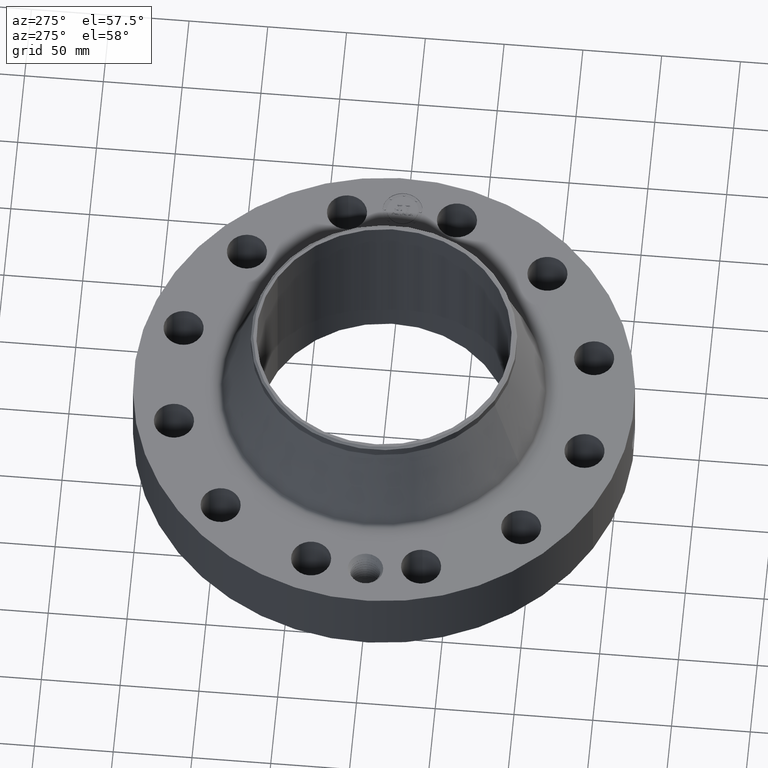
[diagram: clean part render]
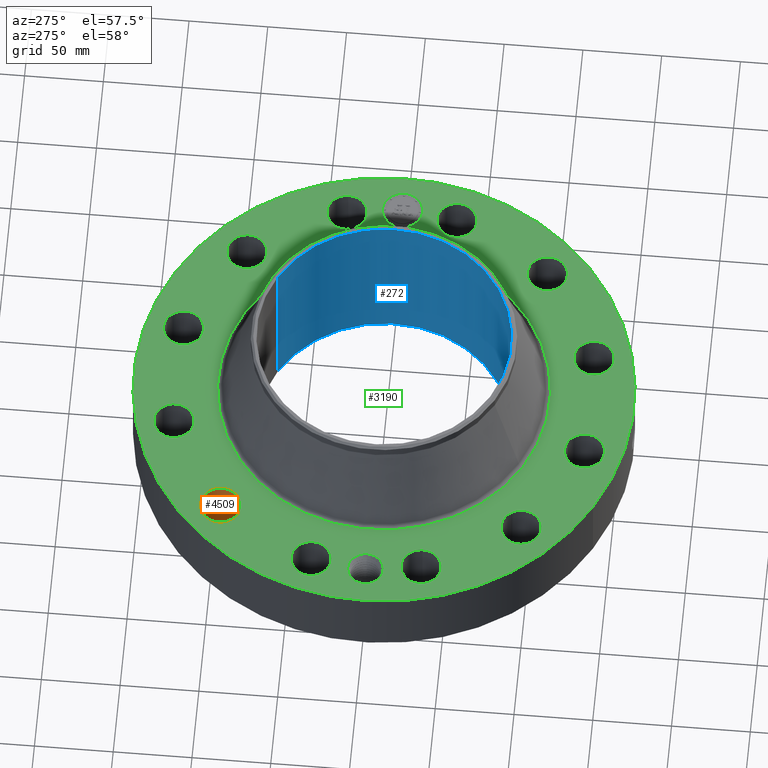
[diagram: same view with three faces highlighted in distinct colors, each labeled with its STEP entity id]
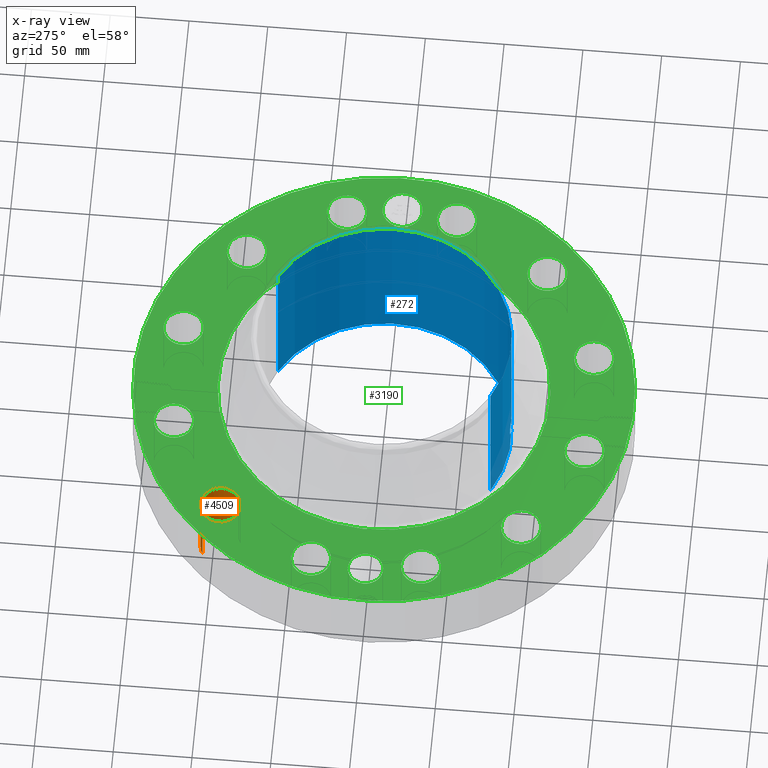
[diagram: x-ray of the same camera — body ghosted, the three highlighted faces saturated]
A machine part, auxiliary view with three faces highlighted in distinct colors.
The next image is the same camera in x-ray (body ghosted, the three faces saturated) — at least one of them is partly hidden behind the body in this view.
Their STEP definitions:

[orange] entity #4509 — the highlighted cylindrical surface (edge-blend (fillet) strip) has radius 12.7 mm, axis along (0, 0, -1).
#3084=AXIS2_PLACEMENT_3D('Circle Axis2P3D',#3082,#3083,$) ;
#4470=AXIS2_PLACEMENT_3D('Cylinder Axis2P3D',#4467,#4468,#4469) ;
#4500=AXIS2_PLACEMENT_3D('Circle Axis2P3D',#4498,#4499,$) ;
#3082=CARTESIAN_POINT('Axis2P3D Location',(-3.75473700812,3.75473700812,1.93200000001)) ;
#3086=CARTESIAN_POINT('Vertex',(-4.01488501972,4.18172999642,1.93200000001)) ;
#3088=CARTESIAN_POINT('Vertex',(-3.49458899651,3.32774401981,1.93200000001)) ;
#4467=CARTESIAN_POINT('Axis2P3D Location',(-3.75473700812,3.75473700812,1.92806299213)) ;
#4472=CARTESIAN_POINT('Line Origine',(-3.49458899651,3.32774401981,0.966000000004)) ;
#4476=CARTESIAN_POINT('Vertex',(-3.49458899651,3.32774401981,0.)) ;
#4483=CARTESIAN_POINT('Vertex',(-4.01488501972,4.18172999642,0.)) ;
#4486=CARTESIAN_POINT('Line Origine',(-4.01488501972,4.18172999642,0.966000000004)) ;
#4498=CARTESIAN_POINT('Axis2P3D Location',(-3.75473700812,3.75473700812,0.)) ;
#3083=DIRECTION('Axis2P3D Direction',(0.,0.,-0.0393700787402)) ;
#4468=DIRECTION('Axis2P3D Direction',(0.,0.,-0.0393700787402)) ;
#4469=DIRECTION('Axis2P3D XDirection',(-0.0204840954021,0.0336214951417,0.)) ;
#4473=DIRECTION('Vector Direction',(0.,0.,-0.0393700787402)) ;
#4487=DIRECTION('Vector Direction',(0.,0.,-0.0393700787402)) ;
#4499=DIRECTION('Axis2P3D Direction',(0.,0.,-0.0393700787402)) ;
#4474=VECTOR('Line Direction',#4473,0.0393700787402) ;
#4488=VECTOR('Line Direction',#4487,0.0393700787402) ;
#4504=ORIENTED_EDGE('',*,*,#4490,.F.) ;
#4505=ORIENTED_EDGE('',*,*,#4502,.T.) ;
#4506=ORIENTED_EDGE('',*,*,#4478,.T.) ;
#4507=ORIENTED_EDGE('',*,*,#3090,.F.) ;
#4509=ADVANCED_FACE('PartBody',(#4508),#4471,.F.) ;
#3085=CIRCLE('generated circle',#3084,0.500000000002) ;
#4501=CIRCLE('generated circle',#4500,0.500000000002) ;
#4471=CYLINDRICAL_SURFACE('generated cylinder',#4470,0.500000000002) ;
#3090=EDGE_CURVE('',#3087,#3089,#3085,.T.) ;
#4478=EDGE_CURVE('',#4477,#3089,#4475,.F.) ;
#4490=EDGE_CURVE('',#4484,#3087,#4489,.F.) ;
#4502=EDGE_CURVE('',#4484,#4477,#4501,.T.) ;
#4503=EDGE_LOOP('',(#4504,#4505,#4506,#4507)) ;
#4508=FACE_OUTER_BOUND('',#4503,.T.) ;
#4475=LINE('Line',#4472,#4474) ;
#4489=LINE('Line',#4486,#4488) ;
#3087=VERTEX_POINT('',#3086) ;
#3089=VERTEX_POINT('',#3088) ;
#4477=VERTEX_POINT('',#4476) ;
#4484=VERTEX_POINT('',#4483) ;

[blue] entity #272 — the highlighted cylindrical surface (partial cylindrical patch) has radius 80.7339 mm, axis along (0, 0, -1).
#232=AXIS2_PLACEMENT_3D('Cylinder Axis2P3D',#229,#230,#231) ;
#236=AXIS2_PLACEMENT_3D('Circle Axis2P3D',#234,#235,$) ;
#252=AXIS2_PLACEMENT_3D('Circle Axis2P3D',#250,#251,$) ;
#81=CARTESIAN_POINT('Control Point',(0.219395640473,-3.1709190786,0.630143615351)) ;
#82=CARTESIAN_POINT('Control Point',(0.206922189069,-3.17178211572,0.607311115709)) ;
#83=CARTESIAN_POINT('Control Point',(0.191480801137,-3.17278887507,0.586105439723)) ;
#84=CARTESIAN_POINT('Control Point',(0.173351825664,-3.17386141958,0.567037196628)) ;
#85=CARTESIAN_POINT('Control Point',(0.112183082773,-3.17696161254,0.517583668595)) ;
#86=CARTESIAN_POINT('Control Point',(0.0350624242797,-3.17897575883,0.494045462645)) ;
#87=CARTESIAN_POINT('Control Point',(-0.0194750712967,-3.1791278185,0.492387778052)) ;
#88=CARTESIAN_POINT('Control Point',(-0.124035068976,-3.1769156347,0.517486209908)) ;
#89=CARTESIAN_POINT('Control Point',(-0.203064883059,-3.172328085,0.590298515845)) ;
#90=CARTESIAN_POINT('Control Point',(-0.232068690359,-3.17006491995,0.63645682153)) ;
#91=CARTESIAN_POINT('Control Point',(-0.255816466001,-3.16819544305,0.714634868099)) ;
#92=CARTESIAN_POINT('Control Point',(-0.248325199448,-3.16878463358,0.794078858202)) ;
#93=CARTESIAN_POINT('Control Point',(-0.242090420794,-3.16928244653,0.820709359006)) ;
#94=CARTESIAN_POINT('Control Point',(-0.232341542979,-3.17002335263,0.846159069073)) ;
#95=CARTESIAN_POINT('Control Point',(-0.219395640473,-3.1709190786,0.869856384655)) ;
#96=CARTESIAN_POINT('Vertex',(0.219395640473,-3.1709190786,0.630143615351)) ;
#98=CARTESIAN_POINT('Vertex',(-0.219395640473,-3.1709190786,0.869856384655)) ;
#206=CARTESIAN_POINT('Control Point',(-0.219395640473,-3.1709190786,0.869856384655)) ;
#207=CARTESIAN_POINT('Control Point',(-0.206922189074,-3.17178211572,0.892688884289)) ;
#208=CARTESIAN_POINT('Control Point',(-0.191480801149,-3.17278887507,0.913894560268)) ;
#209=CARTESIAN_POINT('Control Point',(-0.173351825648,-3.17386141958,0.932962803391)) ;
#210=CARTESIAN_POINT('Control Point',(-0.112183082761,-3.17696161255,0.982416331415)) ;
#211=CARTESIAN_POINT('Control Point',(-0.0350624242751,-3.17897575883,1.00595453736)) ;
#212=CARTESIAN_POINT('Control Point',(0.0194750712941,-3.1791278185,1.00761222195)) ;
#213=CARTESIAN_POINT('Control Point',(0.124035068991,-3.1769156347,0.982513790095)) ;
#214=CARTESIAN_POINT('Control Point',(0.203064883083,-3.172328085,0.909701484139)) ;
#215=CARTESIAN_POINT('Control Point',(0.23206869035,-3.17006491995,0.863543178504)) ;
#216=CARTESIAN_POINT('Control Point',(0.255816466002,-3.16819544305,0.785365131922)) ;
#217=CARTESIAN_POINT('Control Point',(0.248325199448,-3.16878463358,0.705921141804)) ;
#218=CARTESIAN_POINT('Control Point',(0.242090420794,-3.16928244653,0.679290641)) ;
#219=CARTESIAN_POINT('Control Point',(0.232341542978,-3.17002335263,0.653840930933)) ;
#220=CARTESIAN_POINT('Control Point',(0.219395640473,-3.1709190786,0.630143615351)) ;
#229=CARTESIAN_POINT('Axis2P3D Location',(0.,0.,2.18600000001)) ;
#234=CARTESIAN_POINT('Axis2P3D Location',(0.,0.,4.37200000002)) ;
#238=CARTESIAN_POINT('Vertex',(1.52385407446,2.78939617298,4.37200000002)) ;
#240=CARTESIAN_POINT('Vertex',(-1.52385407446,-2.78939617298,4.37200000002)) ;
#243=CARTESIAN_POINT('Line Origine',(1.52385407446,2.78939617298,2.18600000001)) ;
#247=CARTESIAN_POINT('Vertex',(1.52385407446,2.78939617298,-6.15430716013E-015)) ;
#250=CARTESIAN_POINT('Axis2P3D Location',(0.,0.,-6.71378962923E-015)) ;
#254=CARTESIAN_POINT('Vertex',(-1.52385407446,-2.78939617298,-6.15430716013E-015)) ;
#257=CARTESIAN_POINT('Line Origine',(-1.52385407446,-2.78939617298,2.18600000001)) ;
#230=DIRECTION('Axis2P3D Direction',(0.,0.,-0.0393700787402)) ;
#231=DIRECTION('Axis2P3D XDirection',(-0.0188750212049,-0.0345504945626,0.)) ;
#235=DIRECTION('Axis2P3D Direction',(0.,0.,-0.0393700787402)) ;
#244=DIRECTION('Vector Direction',(0.,0.,-0.0393700787402)) ;
#251=DIRECTION('Axis2P3D Direction',(0.,0.,-0.0393700787402)) ;
#258=DIRECTION('Vector Direction',(0.,0.,-0.0393700787402)) ;
#245=VECTOR('Line Direction',#244,0.0393700787402) ;
#259=VECTOR('Line Direction',#258,0.0393700787402) ;
#263=ORIENTED_EDGE('',*,*,#242,.F.) ;
#264=ORIENTED_EDGE('',*,*,#249,.T.) ;
#265=ORIENTED_EDGE('',*,*,#256,.T.) ;
#266=ORIENTED_EDGE('',*,*,#261,.F.) ;
#269=ORIENTED_EDGE('',*,*,#100,.F.) ;
#270=ORIENTED_EDGE('',*,*,#221,.F.) ;
#271=FACE_BOUND('',#268,.T.) ;
#272=ADVANCED_FACE('PartBody',(#267,#271),#233,.F.) ;
#80=B_SPLINE_CURVE_WITH_KNOTS('',5,(#81,#82,#83,#84,#85,#86,#87,#88,#89,#90,#91,#92,#93,#94,#95),.UNSPECIFIED.,.F.,.U.,(6,3,3,3,6),(0.,4.67544549414,14.0204359545,23.3703389351,28.2228740975),.UNSPECIFIED.) ;
#205=B_SPLINE_CURVE_WITH_KNOTS('',5,(#206,#207,#208,#209,#210,#211,#212,#213,#214,#215,#216,#217,#218,#219,#220),.UNSPECIFIED.,.F.,.U.,(6,3,3,3,6),(0.,4.6754454924,14.0204359531,23.3703389364,28.2228740987),.UNSPECIFIED.) ;
#237=CIRCLE('generated circle',#236,3.17850000001) ;
#253=CIRCLE('generated circle',#252,3.17850000001) ;
#233=CYLINDRICAL_SURFACE('generated cylinder',#232,3.17850000001) ;
#100=EDGE_CURVE('',#97,#99,#80,.T.) ;
#221=EDGE_CURVE('',#99,#97,#205,.T.) ;
#242=EDGE_CURVE('',#239,#241,#237,.T.) ;
#249=EDGE_CURVE('',#239,#248,#246,.T.) ;
#256=EDGE_CURVE('',#248,#255,#253,.T.) ;
#261=EDGE_CURVE('',#241,#255,#260,.T.) ;
#262=EDGE_LOOP('',(#263,#264,#265,#266)) ;
#268=EDGE_LOOP('',(#269,#270)) ;
#267=FACE_OUTER_BOUND('',#262,.T.) ;
#246=LINE('Line',#243,#245) ;
#260=LINE('Line',#257,#259) ;
#97=VERTEX_POINT('',#96) ;
#99=VERTEX_POINT('',#98) ;
#239=VERTEX_POINT('',#238) ;
#241=VERTEX_POINT('',#240) ;
#248=VERTEX_POINT('',#247) ;
#255=VERTEX_POINT('',#254) ;

[green] entity #3190 — the highlighted planar face has unit normal (0, 0, -1).
#2190=AXIS2_PLACEMENT_3D('Circle Axis2P3D',#2188,#2189,$) ;
#2216=AXIS2_PLACEMENT_3D('Circle Axis2P3D',#2214,#2215,$) ;
#2914=AXIS2_PLACEMENT_3D('Plane Axis2P3D',#2911,#2912,#2913) ;
#2918=AXIS2_PLACEMENT_3D('Circle Axis2P3D',#2916,#2917,$) ;
#2927=AXIS2_PLACEMENT_3D('Circle Axis2P3D',#2925,#2926,$) ;
#2936=AXIS2_PLACEMENT_3D('Circle Axis2P3D',#2934,#2935,$) ;
#2945=AXIS2_PLACEMENT_3D('Circle Axis2P3D',#2943,#2944,$) ;
#2954=AXIS2_PLACEMENT_3D('Circle Axis2P3D',#2952,#2953,$) ;
#2963=AXIS2_PLACEMENT_3D('Circle Axis2P3D',#2961,#2962,$) ;
#2976=AXIS2_PLACEMENT_3D('Circle Axis2P3D',#2974,#2975,$) ;
#2985=AXIS2_PLACEMENT_3D('Circle Axis2P3D',#2983,#2984,$) ;
#2994=AXIS2_PLACEMENT_3D('Circle Axis2P3D',#2992,#2993,$) ;
#3003=AXIS2_PLACEMENT_3D('Circle Axis2P3D',#3001,#3002,$) ;
#3012=AXIS2_PLACEMENT_3D('Circle Axis2P3D',#3010,#3011,$) ;
#3021=AXIS2_PLACEMENT_3D('Circle Axis2P3D',#3019,#3020,$) ;
#3030=AXIS2_PLACEMENT_3D('Circle Axis2P3D',#3028,#3029,$) ;
#3039=AXIS2_PLACEMENT_3D('Circle Axis2P3D',#3037,#3038,$) ;
#3048=AXIS2_PLACEMENT_3D('Circle Axis2P3D',#3046,#3047,$) ;
#3057=AXIS2_PLACEMENT_3D('Circle Axis2P3D',#3055,#3056,$) ;
#3066=AXIS2_PLACEMENT_3D('Circle Axis2P3D',#3064,#3065,$) ;
#3075=AXIS2_PLACEMENT_3D('Circle Axis2P3D',#3073,#3074,$) ;
#3084=AXIS2_PLACEMENT_3D('Circle Axis2P3D',#3082,#3083,$) ;
#3093=AXIS2_PLACEMENT_3D('Circle Axis2P3D',#3091,#3092,$) ;
#3102=AXIS2_PLACEMENT_3D('Circle Axis2P3D',#3100,#3101,$) ;
#3111=AXIS2_PLACEMENT_3D('Circle Axis2P3D',#3109,#3110,$) ;
#3120=AXIS2_PLACEMENT_3D('Circle Axis2P3D',#3118,#3119,$) ;
#3129=AXIS2_PLACEMENT_3D('Circle Axis2P3D',#3127,#3128,$) ;
#3138=AXIS2_PLACEMENT_3D('Circle Axis2P3D',#3136,#3137,$) ;
#3147=AXIS2_PLACEMENT_3D('Circle Axis2P3D',#3145,#3146,$) ;
#3156=AXIS2_PLACEMENT_3D('Circle Axis2P3D',#3154,#3155,$) ;
#3165=AXIS2_PLACEMENT_3D('Circle Axis2P3D',#3163,#3164,$) ;
#3174=AXIS2_PLACEMENT_3D('Circle Axis2P3D',#3172,#3173,$) ;
#3183=AXIS2_PLACEMENT_3D('Circle Axis2P3D',#3181,#3182,$) ;
#2188=CARTESIAN_POINT('Axis2P3D Location',(0.,0.,1.93200000001)) ;
#2192=CARTESIAN_POINT('Vertex',(-1.98747835697,-3.6380547296,1.93200000001)) ;
#2194=CARTESIAN_POINT('Vertex',(1.98747835697,3.6380547296,1.93200000001)) ;
#2214=CARTESIAN_POINT('Axis2P3D Location',(0.,0.,1.93200000001)) ;
#2911=CARTESIAN_POINT('Axis2P3D Location',(0.,6.25000000002,1.93200000001)) ;
#2916=CARTESIAN_POINT('Axis2P3D Location',(0.,0.,1.93200000001)) ;
#2920=CARTESIAN_POINT('Vertex',(2.99640961629,5.48489101184,1.93200000001)) ;
#2922=CARTESIAN_POINT('Vertex',(-2.99640961629,-5.48489101184,1.93200000001)) ;
#2925=CARTESIAN_POINT('Axis2P3D Location',(0.,0.,1.93200000001)) ;
#2934=CARTESIAN_POINT('Axis2P3D Location',(-5.31000000002,-1.1189649382E-015,1.93200000001)) ;
#2938=CARTESIAN_POINT('Vertex',(-5.69859355843,0.212289628495,1.93200000001)) ;
#2940=CARTESIAN_POINT('Vertex',(-4.92140644161,-0.212289628495,1.93200000001)) ;
#2943=CARTESIAN_POINT('Axis2P3D Location',(-5.31000000002,-1.1189649382E-015,1.93200000001)) ;
#2952=CARTESIAN_POINT('Axis2P3D Location',(5.12906613762,-1.3743291295,1.93200000001)) ;
#2956=CARTESIAN_POINT('Vertex',(4.69027485667,-1.1346163602,1.93200000001)) ;
#2958=CARTESIAN_POINT('Vertex',(5.56785741856,-1.6140418988,1.93200000001)) ;
#2961=CARTESIAN_POINT('Axis2P3D Location',(5.12906613762,-1.3743291295,1.93200000001)) ;
#2974=CARTESIAN_POINT('Axis2P3D Location',(3.75473700812,-3.75473700812,1.93200000001)) ;
#2978=CARTESIAN_POINT('Vertex',(4.01488501972,-4.18172999642,1.93200000001)) ;
#2980=CARTESIAN_POINT('Vertex',(3.49458899651,-3.32774401981,1.93200000001)) ;
#2983=CARTESIAN_POINT('Axis2P3D Location',(3.75473700812,-3.75473700812,1.93200000001)) ;
#2992=CARTESIAN_POINT('Axis2P3D Location',(1.3743291295,-5.12906613762,1.93200000001)) ;
#2996=CARTESIAN_POINT('Vertex',(1.38612742215,-5.62892691853,1.93200000001)) ;
#2998=CARTESIAN_POINT('Vertex',(1.36253083685,-4.6292053567,1.93200000001)) ;
#3001=CARTESIAN_POINT('Axis2P3D Location',(1.3743291295,-5.12906613762,1.93200000001)) ;
#3010=CARTESIAN_POINT('Axis2P3D Location',(-1.3743291295,-5.12906613762,1.93200000001)) ;
#3014=CARTESIAN_POINT('Vertex',(-1.6140418988,-5.56785741856,1.93200000001)) ;
#3016=CARTESIAN_POINT('Vertex',(-1.1346163602,-4.69027485667,1.93200000001)) ;
#3019=CARTESIAN_POINT('Axis2P3D Location',(-1.3743291295,-5.12906613762,1.93200000001)) ;
#3028=CARTESIAN_POINT('Axis2P3D Location',(-3.75473700812,-3.75473700812,1.93200000001)) ;
#3032=CARTESIAN_POINT('Vertex',(-4.18172999642,-4.01488501972,1.93200000001)) ;
#3034=CARTESIAN_POINT('Vertex',(-3.32774401981,-3.49458899651,1.93200000001)) ;
#3037=CARTESIAN_POINT('Axis2P3D Location',(-3.75473700812,-3.75473700812,1.93200000001)) ;
#3046=CARTESIAN_POINT('Axis2P3D Location',(-5.12906613762,-1.3743291295,1.93200000001)) ;
#3050=CARTESIAN_POINT('Vertex',(-5.62892691853,-1.38612742215,1.93200000001)) ;
#3052=CARTESIAN_POINT('Vertex',(-4.6292053567,-1.36253083685,1.93200000001)) ;
#3055=CARTESIAN_POINT('Axis2P3D Location',(-5.12906613762,-1.3743291295,1.93200000001)) ;
#3064=CARTESIAN_POINT('Axis2P3D Location',(-5.12906613762,1.3743291295,1.93200000001)) ;
#3068=CARTESIAN_POINT('Vertex',(-5.56785741856,1.6140418988,1.93200000001)) ;
#3070=CARTESIAN_POINT('Vertex',(-4.69027485667,1.1346163602,1.93200000001)) ;
#3073=CARTESIAN_POINT('Axis2P3D Location',(-5.12906613762,1.3743291295,1.93200000001)) ;
#3082=CARTESIAN_POINT('Axis2P3D Location',(-3.75473700812,3.75473700812,1.93200000001)) ;
#3086=CARTESIAN_POINT('Vertex',(-4.01488501972,4.18172999642,1.93200000001)) ;
#3088=CARTESIAN_POINT('Vertex',(-3.49458899651,3.32774401981,1.93200000001)) ;
#3091=CARTESIAN_POINT('Axis2P3D Location',(-3.75473700812,3.75473700812,1.93200000001)) ;
#3100=CARTESIAN_POINT('Axis2P3D Location',(-1.3743291295,5.12906613762,1.93200000001)) ;
#3104=CARTESIAN_POINT('Vertex',(-1.38612742215,5.62892691853,1.93200000001)) ;
#3106=CARTESIAN_POINT('Vertex',(-1.36253083685,4.6292053567,1.93200000001)) ;
#3109=CARTESIAN_POINT('Axis2P3D Location',(-1.3743291295,5.12906613762,1.93200000001)) ;
#3118=CARTESIAN_POINT('Axis2P3D Location',(1.3743291295,5.12906613762,1.93200000001)) ;
#3122=CARTESIAN_POINT('Vertex',(1.6140418988,5.56785741856,1.93200000001)) ;
#3124=CARTESIAN_POINT('Vertex',(1.1346163602,4.69027485667,1.93200000001)) ;
#3127=CARTESIAN_POINT('Axis2P3D Location',(1.3743291295,5.12906613762,1.93200000001)) ;
#3136=CARTESIAN_POINT('Axis2P3D Location',(3.75473700812,3.75473700812,1.93200000001)) ;
#3140=CARTESIAN_POINT('Vertex',(4.18172999642,4.01488501972,1.93200000001)) ;
#3142=CARTESIAN_POINT('Vertex',(3.32774401981,3.49458899651,1.93200000001)) ;
#3145=CARTESIAN_POINT('Axis2P3D Location',(3.75473700812,3.75473700812,1.93200000001)) ;
#3154=CARTESIAN_POINT('Axis2P3D Location',(5.12906613762,1.3743291295,1.93200000001)) ;
#3158=CARTESIAN_POINT('Vertex',(5.62892691853,1.38612742215,1.93200000001)) ;
#3160=CARTESIAN_POINT('Vertex',(4.6292053567,1.36253083685,1.93200000001)) ;
#3163=CARTESIAN_POINT('Axis2P3D Location',(5.12906613762,1.3743291295,1.93200000001)) ;
#3172=CARTESIAN_POINT('Axis2P3D Location',(5.31000000002,0.,1.93200000001)) ;
#3176=CARTESIAN_POINT('Vertex',(5.31000000002,0.499999995002,1.93200000001)) ;
#3178=CARTESIAN_POINT('Vertex',(5.31000000002,-0.499999995002,1.93200000001)) ;
#3181=CARTESIAN_POINT('Axis2P3D Location',(5.31000000002,0.,1.93200000001)) ;
#2189=DIRECTION('Axis2P3D Direction',(0.,0.,-0.0393700787402)) ;
#2215=DIRECTION('Axis2P3D Direction',(0.,0.,-0.0393700787402)) ;
#2912=DIRECTION('Axis2P3D Direction',(0.,0.,-0.0393700787402)) ;
#2913=DIRECTION('Axis2P3D XDirection',(0.0393700787402,0.,0.)) ;
#2917=DIRECTION('Axis2P3D Direction',(0.,0.,-0.0393700787402)) ;
#2926=DIRECTION('Axis2P3D Direction',(0.,0.,-0.0393700787402)) ;
#2935=DIRECTION('Axis2P3D Direction',(0.,0.,-0.0393700787402)) ;
#2944=DIRECTION('Axis2P3D Direction',(0.,0.,-0.0393700787402)) ;
#2953=DIRECTION('Axis2P3D Direction',(0.,0.,-0.0393700787402)) ;
#2962=DIRECTION('Axis2P3D Direction',(0.,0.,-0.0393700787402)) ;
#2975=DIRECTION('Axis2P3D Direction',(0.,0.,-0.0393700787402)) ;
#2984=DIRECTION('Axis2P3D Direction',(0.,0.,-0.0393700787402)) ;
#2993=DIRECTION('Axis2P3D Direction',(0.,0.,-0.0393700787402)) ;
#3002=DIRECTION('Axis2P3D Direction',(0.,0.,-0.0393700787402)) ;
#3011=DIRECTION('Axis2P3D Direction',(0.,0.,-0.0393700787402)) ;
#3020=DIRECTION('Axis2P3D Direction',(0.,0.,-0.0393700787402)) ;
#3029=DIRECTION('Axis2P3D Direction',(0.,0.,-0.0393700787402)) ;
#3038=DIRECTION('Axis2P3D Direction',(0.,0.,-0.0393700787402)) ;
#3047=DIRECTION('Axis2P3D Direction',(0.,0.,-0.0393700787402)) ;
#3056=DIRECTION('Axis2P3D Direction',(0.,0.,-0.0393700787402)) ;
#3065=DIRECTION('Axis2P3D Direction',(0.,0.,-0.0393700787402)) ;
#3074=DIRECTION('Axis2P3D Direction',(0.,0.,-0.0393700787402)) ;
#3083=DIRECTION('Axis2P3D Direction',(0.,0.,-0.0393700787402)) ;
#3092=DIRECTION('Axis2P3D Direction',(0.,0.,-0.0393700787402)) ;
#3101=DIRECTION('Axis2P3D Direction',(0.,0.,-0.0393700787402)) ;
#3110=DIRECTION('Axis2P3D Direction',(0.,0.,-0.0393700787402)) ;
#3119=DIRECTION('Axis2P3D Direction',(0.,0.,-0.0393700787402)) ;
#3128=DIRECTION('Axis2P3D Direction',(0.,0.,-0.0393700787402)) ;
#3137=DIRECTION('Axis2P3D Direction',(0.,0.,-0.0393700787402)) ;
#3146=DIRECTION('Axis2P3D Direction',(0.,0.,-0.0393700787402)) ;
#3155=DIRECTION('Axis2P3D Direction',(0.,0.,-0.0393700787402)) ;
#3164=DIRECTION('Axis2P3D Direction',(0.,0.,-0.0393700787402)) ;
#3173=DIRECTION('Axis2P3D Direction',(0.,0.,-0.0393700787402)) ;
#3182=DIRECTION('Axis2P3D Direction',(0.,0.,-0.0393700787402)) ;
#2931=ORIENTED_EDGE('',*,*,#2924,.F.) ;
#2932=ORIENTED_EDGE('',*,*,#2929,.F.) ;
#2949=ORIENTED_EDGE('',*,*,#2942,.T.) ;
#2950=ORIENTED_EDGE('',*,*,#2947,.T.) ;
#2967=ORIENTED_EDGE('',*,*,#2960,.T.) ;
#2968=ORIENTED_EDGE('',*,*,#2965,.T.) ;
#2971=ORIENTED_EDGE('',*,*,#2196,.T.) ;
#2972=ORIENTED_EDGE('',*,*,#2218,.T.) ;
#2989=ORIENTED_EDGE('',*,*,#2982,.T.) ;
#2990=ORIENTED_EDGE('',*,*,#2987,.T.) ;
#3007=ORIENTED_EDGE('',*,*,#3000,.T.) ;
#3008=ORIENTED_EDGE('',*,*,#3005,.T.) ;
#3025=ORIENTED_EDGE('',*,*,#3018,.T.) ;
#3026=ORIENTED_EDGE('',*,*,#3023,.T.) ;
#3043=ORIENTED_EDGE('',*,*,#3036,.T.) ;
#3044=ORIENTED_EDGE('',*,*,#3041,.T.) ;
#3061=ORIENTED_EDGE('',*,*,#3054,.T.) ;
#3062=ORIENTED_EDGE('',*,*,#3059,.T.) ;
#3079=ORIENTED_EDGE('',*,*,#3072,.T.) ;
#3080=ORIENTED_EDGE('',*,*,#3077,.T.) ;
#3097=ORIENTED_EDGE('',*,*,#3090,.T.) ;
#3098=ORIENTED_EDGE('',*,*,#3095,.T.) ;
#3115=ORIENTED_EDGE('',*,*,#3108,.T.) ;
#3116=ORIENTED_EDGE('',*,*,#3113,.T.) ;
#3133=ORIENTED_EDGE('',*,*,#3126,.T.) ;
#3134=ORIENTED_EDGE('',*,*,#3131,.T.) ;
#3151=ORIENTED_EDGE('',*,*,#3144,.T.) ;
#3152=ORIENTED_EDGE('',*,*,#3149,.T.) ;
#3169=ORIENTED_EDGE('',*,*,#3162,.T.) ;
#3170=ORIENTED_EDGE('',*,*,#3167,.T.) ;
#3187=ORIENTED_EDGE('',*,*,#3180,.T.) ;
#3188=ORIENTED_EDGE('',*,*,#3185,.T.) ;
#2951=FACE_BOUND('',#2948,.T.) ;
#2969=FACE_BOUND('',#2966,.T.) ;
#2973=FACE_BOUND('',#2970,.T.) ;
#2991=FACE_BOUND('',#2988,.T.) ;
#3009=FACE_BOUND('',#3006,.T.) ;
#3027=FACE_BOUND('',#3024,.T.) ;
#3045=FACE_BOUND('',#3042,.T.) ;
#3063=FACE_BOUND('',#3060,.T.) ;
#3081=FACE_BOUND('',#3078,.T.) ;
#3099=FACE_BOUND('',#3096,.T.) ;
#3117=FACE_BOUND('',#3114,.T.) ;
#3135=FACE_BOUND('',#3132,.T.) ;
#3153=FACE_BOUND('',#3150,.T.) ;
#3171=FACE_BOUND('',#3168,.T.) ;
#3189=FACE_BOUND('',#3186,.T.) ;
#3190=ADVANCED_FACE('PartBody',(#2933,#2951,#2969,#2973,#2991,#3009,#3027,#3045,#3063,#3081,#3099,#3117,#3135,#3153,#3171,#3189),#2915,.F.) ;
#2191=CIRCLE('generated circle',#2190,4.14554127166) ;
#2217=CIRCLE('generated circle',#2216,4.14554127166) ;
#2919=CIRCLE('generated circle',#2918,6.25000000002) ;
#2928=CIRCLE('generated circle',#2927,6.25000000002) ;
#2937=CIRCLE('generated circle',#2936,0.442800000002) ;
#2946=CIRCLE('generated circle',#2945,0.442800000002) ;
#2955=CIRCLE('generated circle',#2954,0.500000000002) ;
#2964=CIRCLE('generated circle',#2963,0.500000000002) ;
#2977=CIRCLE('generated circle',#2976,0.500000000002) ;
#2986=CIRCLE('generated circle',#2985,0.500000000002) ;
#2995=CIRCLE('generated circle',#2994,0.500000000002) ;
#3004=CIRCLE('generated circle',#3003,0.500000000002) ;
#3013=CIRCLE('generated circle',#3012,0.500000000002) ;
#3022=CIRCLE('generated circle',#3021,0.500000000002) ;
#3031=CIRCLE('generated circle',#3030,0.500000000002) ;
#3040=CIRCLE('generated circle',#3039,0.500000000002) ;
#3049=CIRCLE('generated circle',#3048,0.500000000002) ;
#3058=CIRCLE('generated circle',#3057,0.500000000002) ;
#3067=CIRCLE('generated circle',#3066,0.500000000002) ;
#3076=CIRCLE('generated circle',#3075,0.500000000002) ;
#3085=CIRCLE('generated circle',#3084,0.500000000002) ;
#3094=CIRCLE('generated circle',#3093,0.500000000002) ;
#3103=CIRCLE('generated circle',#3102,0.500000000002) ;
#3112=CIRCLE('generated circle',#3111,0.500000000002) ;
#3121=CIRCLE('generated circle',#3120,0.500000000002) ;
#3130=CIRCLE('generated circle',#3129,0.500000000002) ;
#3139=CIRCLE('generated circle',#3138,0.500000000002) ;
#3148=CIRCLE('generated circle',#3147,0.500000000002) ;
#3157=CIRCLE('generated circle',#3156,0.500000000002) ;
#3166=CIRCLE('generated circle',#3165,0.500000000002) ;
#3175=CIRCLE('generated circle',#3174,0.499999995002) ;
#3184=CIRCLE('generated circle',#3183,0.499999995002) ;
#2196=EDGE_CURVE('',#2193,#2195,#2191,.T.) ;
#2218=EDGE_CURVE('',#2195,#2193,#2217,.T.) ;
#2924=EDGE_CURVE('',#2921,#2923,#2919,.T.) ;
#2929=EDGE_CURVE('',#2923,#2921,#2928,.T.) ;
#2942=EDGE_CURVE('',#2939,#2941,#2937,.T.) ;
#2947=EDGE_CURVE('',#2941,#2939,#2946,.T.) ;
#2960=EDGE_CURVE('',#2957,#2959,#2955,.T.) ;
#2965=EDGE_CURVE('',#2959,#2957,#2964,.T.) ;
#2982=EDGE_CURVE('',#2979,#2981,#2977,.T.) ;
#2987=EDGE_CURVE('',#2981,#2979,#2986,.T.) ;
#3000=EDGE_CURVE('',#2997,#2999,#2995,.T.) ;
#3005=EDGE_CURVE('',#2999,#2997,#3004,.T.) ;
#3018=EDGE_CURVE('',#3015,#3017,#3013,.T.) ;
#3023=EDGE_CURVE('',#3017,#3015,#3022,.T.) ;
#3036=EDGE_CURVE('',#3033,#3035,#3031,.T.) ;
#3041=EDGE_CURVE('',#3035,#3033,#3040,.T.) ;
#3054=EDGE_CURVE('',#3051,#3053,#3049,.T.) ;
#3059=EDGE_CURVE('',#3053,#3051,#3058,.T.) ;
#3072=EDGE_CURVE('',#3069,#3071,#3067,.T.) ;
#3077=EDGE_CURVE('',#3071,#3069,#3076,.T.) ;
#3090=EDGE_CURVE('',#3087,#3089,#3085,.T.) ;
#3095=EDGE_CURVE('',#3089,#3087,#3094,.T.) ;
#3108=EDGE_CURVE('',#3105,#3107,#3103,.T.) ;
#3113=EDGE_CURVE('',#3107,#3105,#3112,.T.) ;
#3126=EDGE_CURVE('',#3123,#3125,#3121,.T.) ;
#3131=EDGE_CURVE('',#3125,#3123,#3130,.T.) ;
#3144=EDGE_CURVE('',#3141,#3143,#3139,.T.) ;
#3149=EDGE_CURVE('',#3143,#3141,#3148,.T.) ;
#3162=EDGE_CURVE('',#3159,#3161,#3157,.T.) ;
#3167=EDGE_CURVE('',#3161,#3159,#3166,.T.) ;
#3180=EDGE_CURVE('',#3177,#3179,#3175,.T.) ;
#3185=EDGE_CURVE('',#3179,#3177,#3184,.T.) ;
#2930=EDGE_LOOP('',(#2931,#2932)) ;
#2948=EDGE_LOOP('',(#2949,#2950)) ;
#2966=EDGE_LOOP('',(#2967,#2968)) ;
#2970=EDGE_LOOP('',(#2971,#2972)) ;
#2988=EDGE_LOOP('',(#2989,#2990)) ;
#3006=EDGE_LOOP('',(#3007,#3008)) ;
#3024=EDGE_LOOP('',(#3025,#3026)) ;
#3042=EDGE_LOOP('',(#3043,#3044)) ;
#3060=EDGE_LOOP('',(#3061,#3062)) ;
#3078=EDGE_LOOP('',(#3079,#3080)) ;
#3096=EDGE_LOOP('',(#3097,#3098)) ;
#3114=EDGE_LOOP('',(#3115,#3116)) ;
#3132=EDGE_LOOP('',(#3133,#3134)) ;
#3150=EDGE_LOOP('',(#3151,#3152)) ;
#3168=EDGE_LOOP('',(#3169,#3170)) ;
#3186=EDGE_LOOP('',(#3187,#3188)) ;
#2933=FACE_OUTER_BOUND('',#2930,.T.) ;
#2915=PLANE('',#2914) ;
#2193=VERTEX_POINT('',#2192) ;
#2195=VERTEX_POINT('',#2194) ;
#2921=VERTEX_POINT('',#2920) ;
#2923=VERTEX_POINT('',#2922) ;
#2939=VERTEX_POINT('',#2938) ;
#2941=VERTEX_POINT('',#2940) ;
#2957=VERTEX_POINT('',#2956) ;
#2959=VERTEX_POINT('',#2958) ;
#2979=VERTEX_POINT('',#2978) ;
#2981=VERTEX_POINT('',#2980) ;
#2997=VERTEX_POINT('',#2996) ;
#2999=VERTEX_POINT('',#2998) ;
#3015=VERTEX_POINT('',#3014) ;
#3017=VERTEX_POINT('',#3016) ;
#3033=VERTEX_POINT('',#3032) ;
#3035=VERTEX_POINT('',#3034) ;
#3051=VERTEX_POINT('',#3050) ;
#3053=VERTEX_POINT('',#3052) ;
#3069=VERTEX_POINT('',#3068) ;
#3071=VERTEX_POINT('',#3070) ;
#3087=VERTEX_POINT('',#3086) ;
#3089=VERTEX_POINT('',#3088) ;
#3105=VERTEX_POINT('',#3104) ;
#3107=VERTEX_POINT('',#3106) ;
#3123=VERTEX_POINT('',#3122) ;
#3125=VERTEX_POINT('',#3124) ;
#3141=VERTEX_POINT('',#3140) ;
#3143=VERTEX_POINT('',#3142) ;
#3159=VERTEX_POINT('',#3158) ;
#3161=VERTEX_POINT('',#3160) ;
#3177=VERTEX_POINT('',#3176) ;
#3179=VERTEX_POINT('',#3178) ;